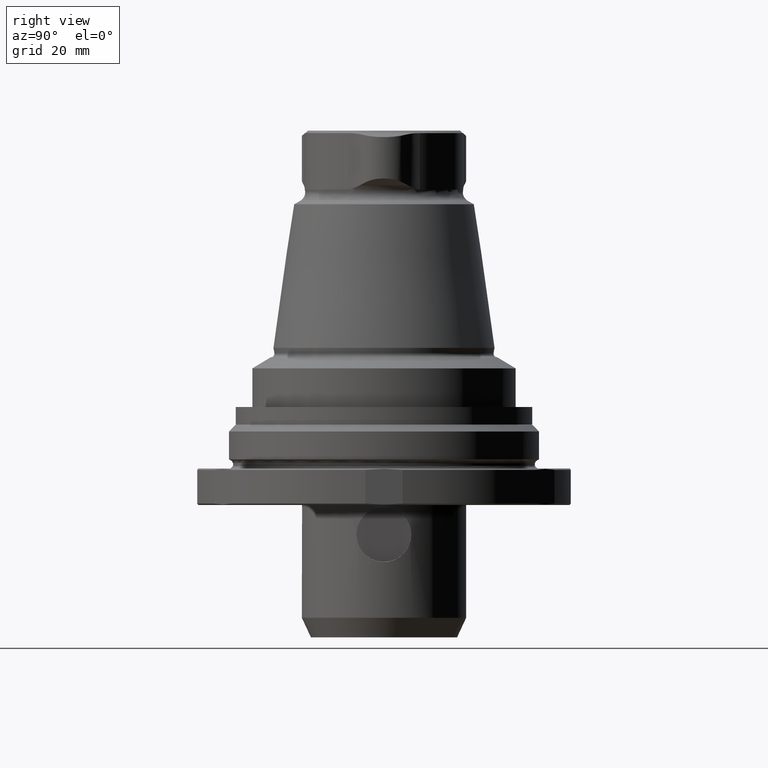
[diagram: clean part render]
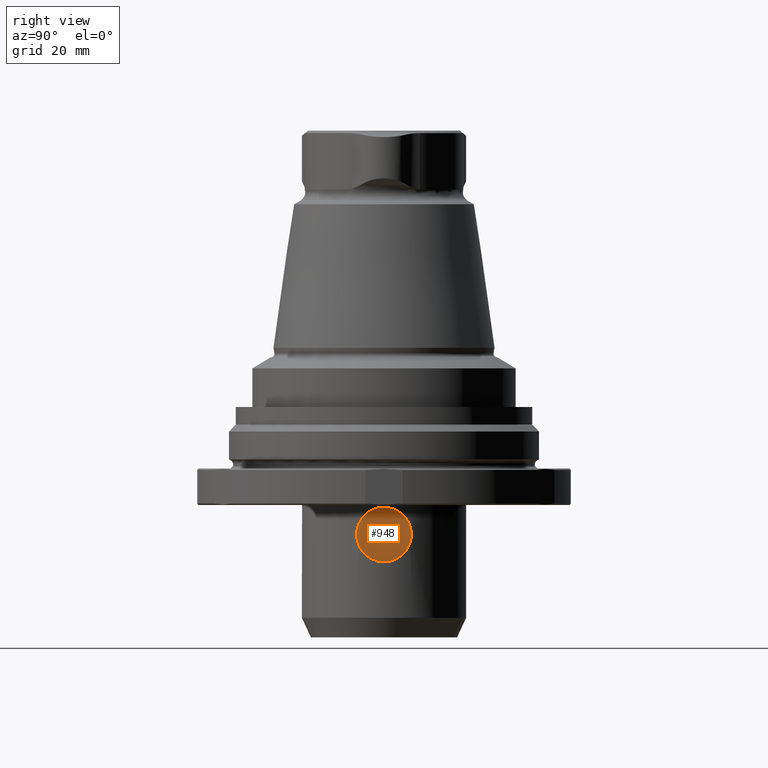
[diagram: same view with one face highlighted and labeled with its STEP entity id]
A machine part, right view. The second image highlights one B-rep face of the part: STEP entity #948.
In plain terms, the highlighted planar face has unit normal (0.9994, 0, -0.0349).
Its self-contained STEP definition (entity closure, byte-faithful):
#111=PLANE('',#1077);
#164=CIRCLE('',#1078,6.);
#408=ORIENTED_EDGE('',*,*,#533,.T.);
#533=EDGE_CURVE('',#625,#625,#164,.T.);
#625=VERTEX_POINT('',#1802);
#760=EDGE_LOOP('',(#408));
#855=FACE_BOUND('',#760,.T.);
#948=ADVANCED_FACE('',(#855),#111,.T.);
#1077=AXIS2_PLACEMENT_3D('',#1800,#1338,#1339);
#1078=AXIS2_PLACEMENT_3D('',#1801,#1340,#1341);
#1338=DIRECTION('',(0.999390827019096,0.,-0.0348994967025009));
#1339=DIRECTION('',(-0.0348994967025009,0.,-0.999390827019096));
#1340=DIRECTION('',(0.999390827019096,0.,-0.0348994967025009));
#1341=DIRECTION('',(-0.0348994967025009,0.,-0.999390827019096));
#1800=CARTESIAN_POINT('',(16.7007919248752,0.,-15.4546306542868));
#1801=CARTESIAN_POINT('',(16.7007919248752,0.,-15.4546306542868));
#1802=CARTESIAN_POINT('',(16.4913949446602,0.,-21.4509756164013));